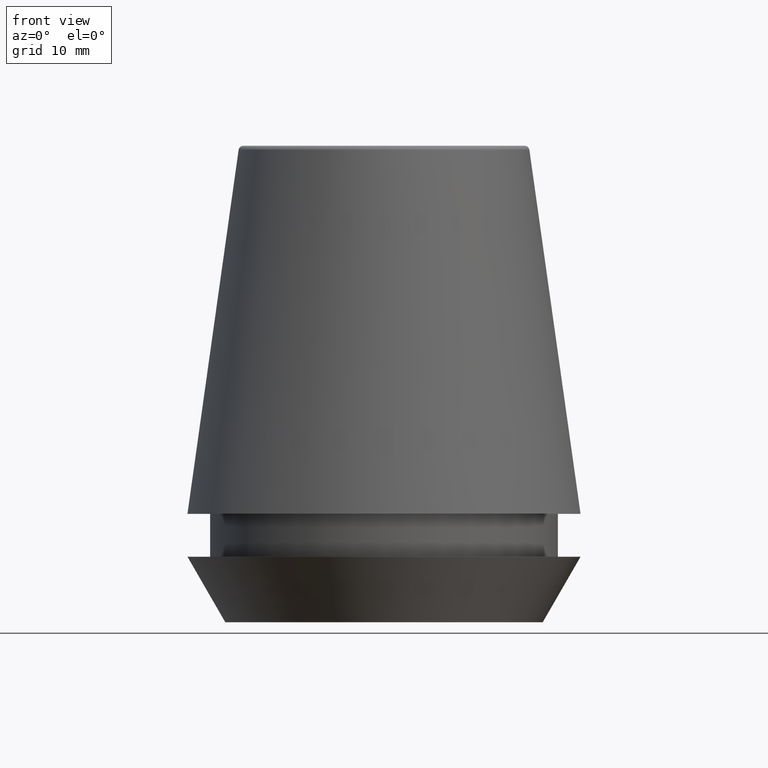
[diagram: clean part render]
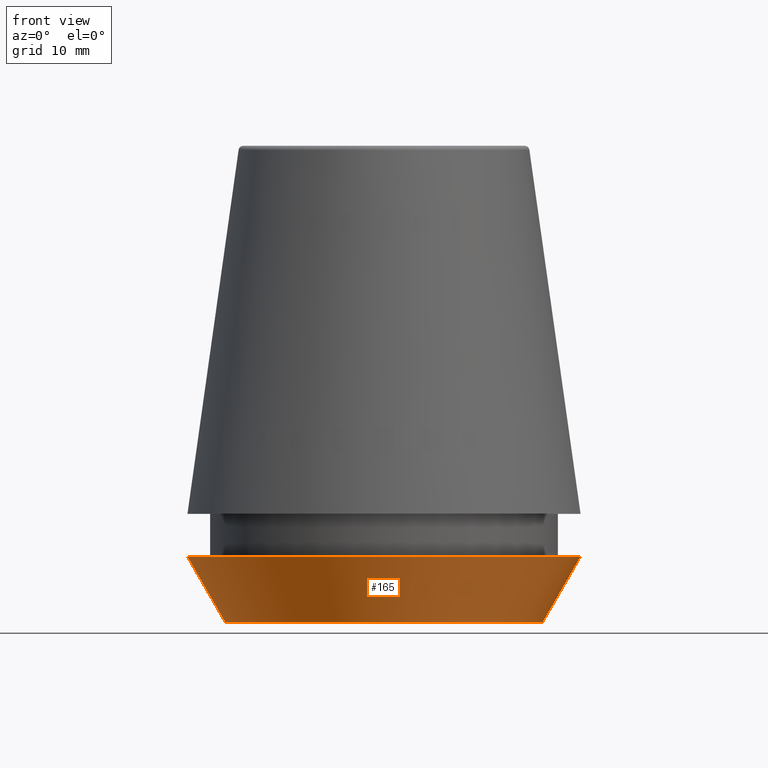
[diagram: same view with one face highlighted and labeled with its STEP entity id]
A machine part, front view. The second image highlights one B-rep face of the part: STEP entity #165.
In plain terms, the highlighted conical surface has half-angle 30 deg.
Its self-contained STEP definition (entity closure, byte-faithful):
#25 = EDGE_CURVE ( 'NONE', #385, #188, #186, .T. ) ;
#26 = CARTESIAN_POINT ( 'NONE',  ( 0.0000000000000000000, 0.0000000000000000000, 0.0000000000000000000 ) ) ;
#32 = EDGE_CURVE ( 'NONE', #193, #188, #241, .T. ) ;
#38 = DIRECTION ( 'NONE',  ( -0.4999999999999947300, 6.123233995736700700E-017, 0.8660254037844418200 ) ) ;
#44 = DIRECTION ( 'NONE',  ( 0.4999999999999947300, 0.0000000000000000000, 0.8660254037844418200 ) ) ;
#57 = CARTESIAN_POINT ( 'NONE',  ( 13.32457351945710200, 0.0000000000000000000, 0.0000000000000000000 ) ) ;
#67 = CARTESIAN_POINT ( 'NONE',  ( -16.50000000000000000, 2.020667218593133100E-015, 5.500000000000005300 ) ) ;
#74 = VECTOR ( 'NONE', #44, 999.9999999999998900 ) ;
#92 = EDGE_CURVE ( 'NONE', #98, #193, #229, .T. ) ;
#98 = VERTEX_POINT ( 'NONE', #204 ) ;
#125 = CONICAL_SURFACE ( 'NONE', #181, 13.32457351945710200, 0.5235987755982927100 ) ;
#126 = CARTESIAN_POINT ( 'NONE',  ( 0.0000000000000000000, 0.0000000000000000000, 0.0000000000000000000 ) ) ;
#155 = DIRECTION ( 'NONE',  ( -0.0000000000000000000, -0.0000000000000000000, 1.000000000000000000 ) ) ;
#165 = ADVANCED_FACE ( 'NONE', ( #314 ), #125, .T. ) ;
#170 = DIRECTION ( 'NONE',  ( 1.000000000000000000, 0.0000000000000000000, 0.0000000000000000000 ) ) ;
#181 = AXIS2_PLACEMENT_3D ( 'NONE', #26, #208, #170 ) ;
#183 = CARTESIAN_POINT ( 'NONE',  ( -13.32457351945710200, 1.631789631060672300E-015, 0.0000000000000000000 ) ) ;
#185 = AXIS2_PLACEMENT_3D ( 'NONE', #126, #155, #255 ) ;
#186 = CIRCLE ( 'NONE', #245, 16.50000000000000000 ) ;
#188 = VERTEX_POINT ( 'NONE', #330 ) ;
#193 = VERTEX_POINT ( 'NONE', #57 ) ;
#204 = CARTESIAN_POINT ( 'NONE',  ( -13.32457351945710200, 1.826228424826902600E-015, 0.0000000000000000000 ) ) ;
#208 = DIRECTION ( 'NONE',  ( -0.0000000000000000000, -0.0000000000000000000, 1.000000000000000000 ) ) ;
#229 = CIRCLE ( 'NONE', #185, 13.32457351945710200 ) ;
#241 = LINE ( 'NONE', #347, #74 ) ;
#245 = AXIS2_PLACEMENT_3D ( 'NONE', #371, #257, #281 ) ;
#255 = DIRECTION ( 'NONE',  ( 1.000000000000000000, 0.0000000000000000000, 0.0000000000000000000 ) ) ;
#257 = DIRECTION ( 'NONE',  ( -0.0000000000000000000, -0.0000000000000000000, 1.000000000000000000 ) ) ;
#281 = DIRECTION ( 'NONE',  ( 1.000000000000000000, 0.0000000000000000000, 0.0000000000000000000 ) ) ;
#306 = ORIENTED_EDGE ( 'NONE', *, *, #92, .T. ) ;
#314 = FACE_OUTER_BOUND ( 'NONE', #360, .T. ) ;
#321 = ORIENTED_EDGE ( 'NONE', *, *, #349, .F. ) ;
#330 = CARTESIAN_POINT ( 'NONE',  ( 16.50000000000000000, 0.0000000000000000000, 5.500000000000005300 ) ) ;
#335 = ORIENTED_EDGE ( 'NONE', *, *, #32, .T. ) ;
#347 = CARTESIAN_POINT ( 'NONE',  ( 13.32457351945710200, 0.0000000000000000000, 0.0000000000000000000 ) ) ;
#349 = EDGE_CURVE ( 'NONE', #98, #385, #350, .T. ) ;
#350 = LINE ( 'NONE', #183, #351 ) ;
#351 = VECTOR ( 'NONE', #38, 999.9999999999998900 ) ;
#353 = ORIENTED_EDGE ( 'NONE', *, *, #25, .F. ) ;
#360 = EDGE_LOOP ( 'NONE', ( #321, #306, #335, #353 ) ) ;
#371 = CARTESIAN_POINT ( 'NONE',  ( 0.0000000000000000000, 0.0000000000000000000, 5.500000000000005300 ) ) ;
#385 = VERTEX_POINT ( 'NONE', #67 ) ;